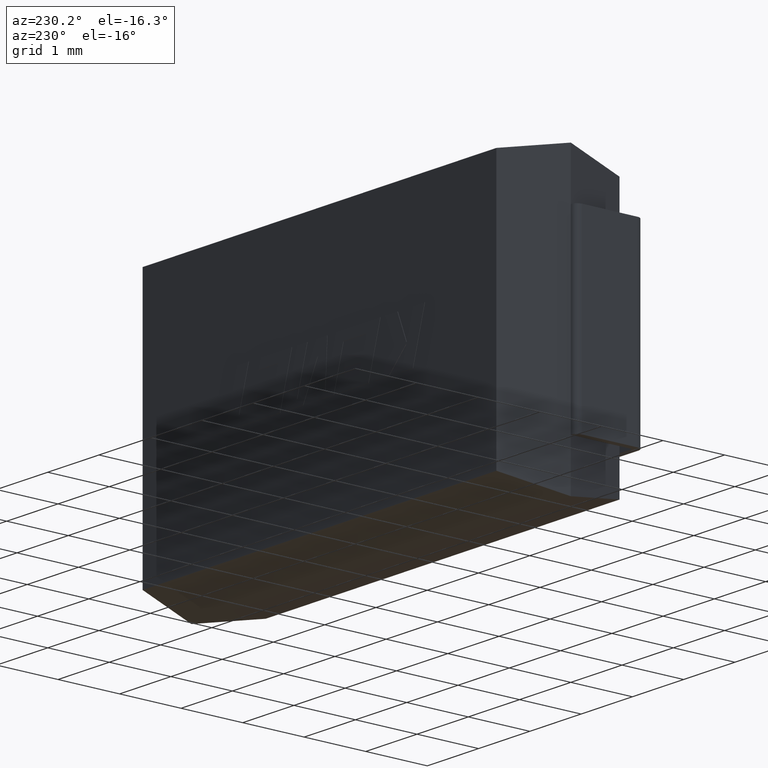
[diagram: clean part render]
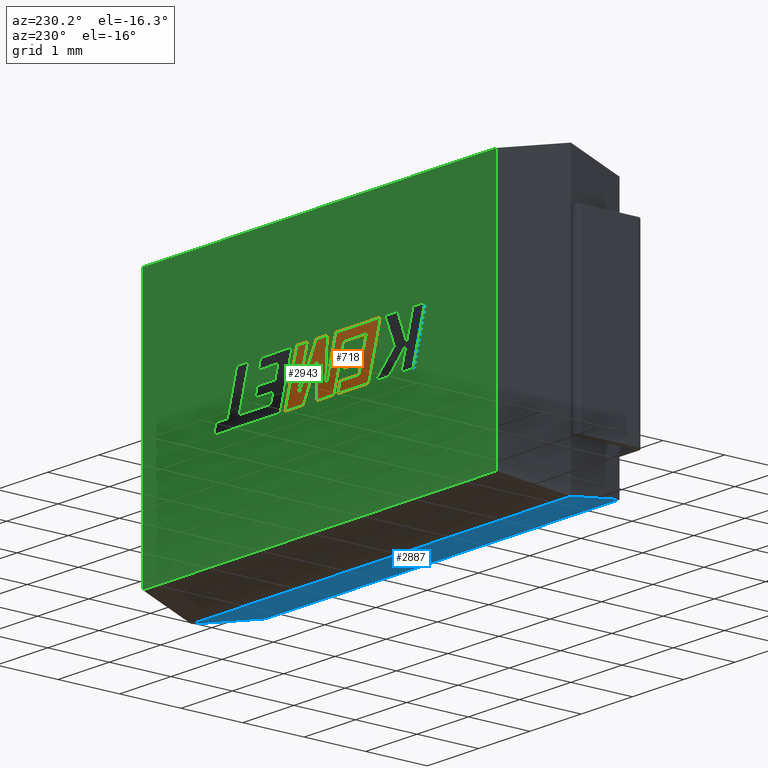
[diagram: same view with three faces highlighted in distinct colors, each labeled with its STEP entity id]
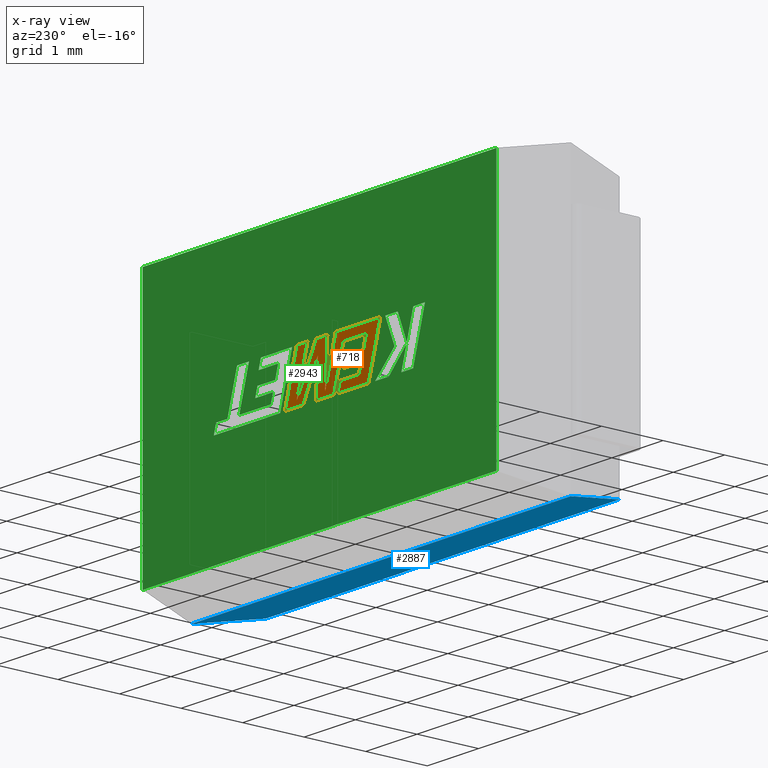
[diagram: x-ray of the same camera — body ghosted, the three highlighted faces saturated]
A machine part, auxiliary view with three faces highlighted in distinct colors.
The next image is the same camera in x-ray (body ghosted, the three faces saturated) — at least one of them is partly hidden behind the body in this view.
Their STEP definitions:

[orange] entity #718 — the highlighted planar face has unit normal (0, -1, -0).
#6 = DIRECTION ( 'NONE',  ( -1.000000000000000000, 0.000000000000000000, 0.000000000000000000 ) ) ;
#16 = VECTOR ( 'NONE', #530, 1000.000000000000000 ) ;
#19 = CARTESIAN_POINT ( 'NONE',  ( 3.417282441482504041, 2.004999999999999893, -2.702191784705270106 ) ) ;
#32 = CARTESIAN_POINT ( 'NONE',  ( 2.882164538290417077, 2.004999999999999893, -2.398684648839587652 ) ) ;
#34 = CARTESIAN_POINT ( 'NONE',  ( 3.758697010579060915, 2.004999999999999893, -1.895731297701219953 ) ) ;
#38 = EDGE_CURVE ( 'NONE', #2933, #2371, #1497, .T. ) ;
#73 = CARTESIAN_POINT ( 'NONE',  ( 3.729711267094204530, 2.004999999999999893, -2.126046051043519736 ) ) ;
#76 = VERTEX_POINT ( 'NONE', #595 ) ;
#77 = ORIENTED_EDGE ( 'NONE', *, *, #1706, .T. ) ;
#101 = ORIENTED_EDGE ( 'NONE', *, *, #1899, .T. ) ;
#125 = EDGE_CURVE ( 'NONE', #1047, #2933, #2625, .T. ) ;
#134 = CARTESIAN_POINT ( 'NONE',  ( 2.741056880455718492, 2.004999999999999893, -2.702191784705270106 ) ) ;
#135 = VERTEX_POINT ( 'NONE', #2122 ) ;
#159 = VECTOR ( 'NONE', #728, 1000.000000000000114 ) ;
#162 = DIRECTION ( 'NONE',  ( -1.000000000000000000, 0.000000000000000000, 0.000000000000000000 ) ) ;
#165 = VECTOR ( 'NONE', #1540, 1000.000000000000114 ) ;
#183 = ORIENTED_EDGE ( 'NONE', *, *, #840, .T. ) ;
#194 = VERTEX_POINT ( 'NONE', #815 ) ;
#203 = DIRECTION ( 'NONE',  ( 1.000000000000000000, 0.000000000000000000, -2.116196963092782927E-15 ) ) ;
#267 = DIRECTION ( 'NONE',  ( 1.000000000000000000, 0.000000000000000000, 0.000000000000000000 ) ) ;
#273 = ORIENTED_EDGE ( 'NONE', *, *, #2906, .T. ) ;
#284 = CARTESIAN_POINT ( 'NONE',  ( 3.932371369323392596, 2.004999999999999893, -1.895731297701219953 ) ) ;
#294 = ORIENTED_EDGE ( 'NONE', *, *, #1900, .T. ) ;
#323 = ORIENTED_EDGE ( 'NONE', *, *, #1918, .T. ) ;
#327 = VERTEX_POINT ( 'NONE', #19 ) ;
#328 = DIRECTION ( 'NONE',  ( -0.2765379750249962187, 0.000000000000000000, 0.9610029908221277006 ) ) ;
#356 = EDGE_CURVE ( 'NONE', #2712, #1876, #449, .T. ) ;
#387 = VERTEX_POINT ( 'NONE', #482 ) ;
#394 = CARTESIAN_POINT ( 'NONE',  ( 3.229577011083042848, 2.004999999999999893, -2.049160894554300949 ) ) ;
#427 = VERTEX_POINT ( 'NONE', #1378 ) ;
#435 = VERTEX_POINT ( 'NONE', #736 ) ;
#449 = LINE ( 'NONE', #1881, #698 ) ;
#467 = VECTOR ( 'NONE', #203, 1000.000000000000000 ) ;
#482 = CARTESIAN_POINT ( 'NONE',  ( 3.336842861889568024, 2.004999999999999893, -2.702191784705270106 ) ) ;
#491 = DIRECTION ( 'NONE',  ( 0.000000000000000000, -1.000000000000000000, -0.000000000000000000 ) ) ;
#492 = LINE ( 'NONE', #2819, #2634 ) ;
#517 = LINE ( 'NONE', #1891, #16 ) ;
#530 = DIRECTION ( 'NONE',  ( 1.000000000000000000, 0.000000000000000000, 0.000000000000000000 ) ) ;
#595 = CARTESIAN_POINT ( 'NONE',  ( 2.925812401867613932, 2.004999999999999893, -2.548686171911270559 ) ) ;
#596 = LINE ( 'NONE', #1322, #2778 ) ;
#607 = DIRECTION ( 'NONE',  ( 0.2759782365590708886, 0.000000000000000000, -0.9611638845408962961 ) ) ;
#621 = LINE ( 'NONE', #2682, #2822 ) ;
#659 = VECTOR ( 'NONE', #1998, 1000.000000000000114 ) ;
#665 = VERTEX_POINT ( 'NONE', #928 ) ;
#668 = VECTOR ( 'NONE', #267, 1000.000000000000000 ) ;
#698 = VECTOR ( 'NONE', #2770, 1000.000000000000227 ) ;
#718 = ADVANCED_FACE ( 'NONE', ( #1860 ), #2781, .F. ) ;
#724 = DIRECTION ( 'NONE',  ( -1.000000000000000000, 0.000000000000000000, 0.000000000000000000 ) ) ;
#728 = DIRECTION ( 'NONE',  ( 0.05375259206908022946, 0.000000000000000000, -0.9985542843760948362 ) ) ;
#736 = CARTESIAN_POINT ( 'NONE',  ( 4.369168781617137398, 2.004999999999999893, -2.702191784705270106 ) ) ;
#785 = AXIS2_PLACEMENT_3D ( 'NONE', #1878, #491, #1414 ) ;
#807 = CARTESIAN_POINT ( 'NONE',  ( 3.932371369323392596, 2.004999999999999893, -1.895731297701219953 ) ) ;
#811 = ORIENTED_EDGE ( 'NONE', *, *, #38, .T. ) ;
#815 = CARTESIAN_POINT ( 'NONE',  ( 4.137305445195226916, 2.004999999999999893, -1.895731297701220397 ) ) ;
#817 = CARTESIAN_POINT ( 'NONE',  ( 4.139541785171635624, 2.004999999999999893, -2.617159370927629070 ) ) ;
#821 = ORIENTED_EDGE ( 'NONE', *, *, #2618, .T. ) ;
#840 = EDGE_CURVE ( 'NONE', #1876, #665, #596, .T. ) ;
#844 = EDGE_CURVE ( 'NONE', #2758, #427, #1344, .T. ) ;
#852 = VERTEX_POINT ( 'NONE', #882 ) ;
#882 = CARTESIAN_POINT ( 'NONE',  ( 2.741056880455718492, 2.004999999999999893, -2.702191784705270106 ) ) ;
#889 = ORIENTED_EDGE ( 'NONE', *, *, #1829, .T. ) ;
#928 = CARTESIAN_POINT ( 'NONE',  ( 2.882164538290417077, 2.004999999999999893, -2.398684648839587652 ) ) ;
#952 = CARTESIAN_POINT ( 'NONE',  ( 3.377795837061557727, 2.004999999999999893, -1.895731297701219731 ) ) ;
#992 = CARTESIAN_POINT ( 'NONE',  ( 2.839629940447088607, 2.004999999999999893, -2.249597769201114872 ) ) ;
#993 = CARTESIAN_POINT ( 'NONE',  ( 3.543701856940162376, 2.004999999999999893, -1.895731297701219953 ) ) ;
#1010 = DIRECTION ( 'NONE',  ( 0.2732148821745548073, 0.000000000000000000, -0.9619530280415691248 ) ) ;
#1047 = VERTEX_POINT ( 'NONE', #993 ) ;
#1054 = LINE ( 'NONE', #1791, #2689 ) ;
#1068 = ORIENTED_EDGE ( 'NONE', *, *, #1662, .T. ) ;
#1201 = CARTESIAN_POINT ( 'NONE',  ( 3.583946168008536937, 2.004999999999999893, -2.613701871623553163 ) ) ;
#1258 = DIRECTION ( 'NONE',  ( -0.4443210308328901514, 0.000000000000000000, 0.8958676361827107026 ) ) ;
#1294 = DIRECTION ( 'NONE',  ( 1.000000000000000000, 0.000000000000000000, 0.000000000000000000 ) ) ;
#1301 = LINE ( 'NONE', #2229, #659 ) ;
#1322 = CARTESIAN_POINT ( 'NONE',  ( 3.228306809212786010, 2.004999999999999893, -2.398684648839587652 ) ) ;
#1323 = VERTEX_POINT ( 'NONE', #2580 ) ;
#1327 = EDGE_CURVE ( 'NONE', #1323, #2655, #1668, .T. ) ;
#1344 = LINE ( 'NONE', #394, #1905 ) ;
#1378 = CARTESIAN_POINT ( 'NONE',  ( 2.782519898721566687, 2.004999999999999893, -2.049160894554300949 ) ) ;
#1391 = VECTOR ( 'NONE', #2598, 1000.000000000000114 ) ;
#1414 = DIRECTION ( 'NONE',  ( 0.000000000000000000, 0.000000000000000000, -1.000000000000000000 ) ) ;
#1431 = CARTESIAN_POINT ( 'NONE',  ( 4.369168781617137398, 2.004999999999999893, -2.702191784705270106 ) ) ;
#1441 = DIRECTION ( 'NONE',  ( -1.000000000000000000, 0.000000000000000000, 0.000000000000000000 ) ) ;
#1445 = EDGE_CURVE ( 'NONE', #1588, #2854, #621, .T. ) ;
#1446 = EDGE_CURVE ( 'NONE', #194, #435, #1301, .T. ) ;
#1452 = LINE ( 'NONE', #284, #467 ) ;
#1453 = VECTOR ( 'NONE', #2463, 1000.000000000000114 ) ;
#1458 = CARTESIAN_POINT ( 'NONE',  ( 3.760725431349892567, 2.004999999999999893, -2.702191784705270106 ) ) ;
#1475 = VECTOR ( 'NONE', #2993, 1000.000000000000000 ) ;
#1480 = CARTESIAN_POINT ( 'NONE',  ( 4.015460696978008670, 2.004999999999999893, -2.702191784705270106 ) ) ;
#1497 = LINE ( 'NONE', #2237, #1453 ) ;
#1506 = ORIENTED_EDGE ( 'NONE', *, *, #1809, .T. ) ;
#1519 = CARTESIAN_POINT ( 'NONE',  ( 3.293244040855623389, 2.004999999999999893, -2.548686171911270559 ) ) ;
#1540 = DIRECTION ( 'NONE',  ( -0.2762517575165896466, 0.000000000000000000, 0.9610853065513982330 ) ) ;
#1588 = VERTEX_POINT ( 'NONE', #952 ) ;
#1591 = CARTESIAN_POINT ( 'NONE',  ( 4.015460696978008670, 2.004999999999999893, -2.702191784705270106 ) ) ;
#1609 = CARTESIAN_POINT ( 'NONE',  ( 3.583946168008536937, 2.004999999999999893, -2.613701871623553163 ) ) ;
#1655 = LINE ( 'NONE', #2581, #668 ) ;
#1662 = EDGE_CURVE ( 'NONE', #2371, #1997, #1054, .T. ) ;
#1668 = LINE ( 'NONE', #73, #159 ) ;
#1683 = CARTESIAN_POINT ( 'NONE',  ( 3.185723168826146257, 2.004999999999999893, -2.249597769201114872 ) ) ;
#1686 = CARTESIAN_POINT ( 'NONE',  ( 3.228306809212786010, 2.004999999999999893, -2.398684648839587652 ) ) ;
#1695 = CARTESIAN_POINT ( 'NONE',  ( 3.543701856940162376, 2.004999999999999893, -1.895731297701219953 ) ) ;
#1706 = EDGE_CURVE ( 'NONE', #427, #2678, #2439, .T. ) ;
#1738 = EDGE_LOOP ( 'NONE', ( #323, #2641, #2413, #273, #2360, #2249, #77, #294, #2855, #183, #101, #821, #2508, #889, #1967, #2648, #2478, #2262, #2317, #811, #1068, #1506, #2896 ) ) ;
#1750 = LINE ( 'NONE', #1519, #1818 ) ;
#1769 = CARTESIAN_POINT ( 'NONE',  ( 3.417282441482504041, 2.004999999999999893, -2.702191784705270106 ) ) ;
#1778 = DIRECTION ( 'NONE',  ( -0.2760118818968559373, 0.000000000000000000, 0.9611542233438690186 ) ) ;
#1791 = CARTESIAN_POINT ( 'NONE',  ( 4.139541785171635624, 2.004999999999999893, -2.617159370927629070 ) ) ;
#1809 = EDGE_CURVE ( 'NONE', #1997, #194, #1452, .T. ) ;
#1818 = VECTOR ( 'NONE', #1010, 1000.000000000000227 ) ;
#1829 = EDGE_CURVE ( 'NONE', #387, #852, #492, .T. ) ;
#1860 = FACE_OUTER_BOUND ( 'NONE', #1738, .T. ) ;
#1870 = VECTOR ( 'NONE', #2504, 1000.000000000000000 ) ;
#1876 = VERTEX_POINT ( 'NONE', #1686 ) ;
#1878 = CARTESIAN_POINT ( 'NONE',  ( 0.000000000000000000, 2.004999999999999005, 0.000000000000000000 ) ) ;
#1881 = CARTESIAN_POINT ( 'NONE',  ( 3.185723168826146257, 2.004999999999999893, -2.249597769201114872 ) ) ;
#1891 = CARTESIAN_POINT ( 'NONE',  ( 2.839629940447088607, 2.004999999999999893, -2.249597769201114872 ) ) ;
#1899 = EDGE_CURVE ( 'NONE', #665, #76, #2123, .T. ) ;
#1900 = EDGE_CURVE ( 'NONE', #2678, #2712, #517, .T. ) ;
#1905 = VECTOR ( 'NONE', #162, 1000.000000000000000 ) ;
#1910 = VECTOR ( 'NONE', #724, 1000.000000000000000 ) ;
#1918 = EDGE_CURVE ( 'NONE', #435, #2192, #2760, .T. ) ;
#1967 = ORIENTED_EDGE ( 'NONE', *, *, #2035, .T. ) ;
#1992 = EDGE_CURVE ( 'NONE', #135, #387, #1750, .T. ) ;
#1997 = VERTEX_POINT ( 'NONE', #807 ) ;
#1998 = DIRECTION ( 'NONE',  ( 0.2763139702539123554, 0.000000000000000000, -0.9610674221107070592 ) ) ;
#2035 = EDGE_CURVE ( 'NONE', #852, #2532, #2658, .T. ) ;
#2050 = EDGE_CURVE ( 'NONE', #327, #2758, #2907, .T. ) ;
#2085 = CARTESIAN_POINT ( 'NONE',  ( 2.508990016831305070, 2.004999999999999893, -1.895731297701219509 ) ) ;
#2114 = LINE ( 'NONE', #2085, #1475 ) ;
#2122 = CARTESIAN_POINT ( 'NONE',  ( 3.293244040855623389, 2.004999999999999893, -2.548686171911270559 ) ) ;
#2123 = LINE ( 'NONE', #32, #2496 ) ;
#2192 = VERTEX_POINT ( 'NONE', #1591 ) ;
#2229 = CARTESIAN_POINT ( 'NONE',  ( 4.137305445195226916, 2.004999999999999893, -1.895731297701220397 ) ) ;
#2237 = CARTESIAN_POINT ( 'NONE',  ( 3.758697010579060915, 2.004999999999999893, -1.895731297701219953 ) ) ;
#2248 = CARTESIAN_POINT ( 'NONE',  ( 3.229577011083042848, 2.004999999999999893, -2.049160894554300949 ) ) ;
#2249 = ORIENTED_EDGE ( 'NONE', *, *, #844, .T. ) ;
#2262 = ORIENTED_EDGE ( 'NONE', *, *, #2588, .T. ) ;
#2285 = CARTESIAN_POINT ( 'NONE',  ( 2.508990016831305070, 2.004999999999999893, -1.895731297701219509 ) ) ;
#2314 = VECTOR ( 'NONE', #1258, 1000.000000000000227 ) ;
#2317 = ORIENTED_EDGE ( 'NONE', *, *, #125, .T. ) ;
#2327 = CARTESIAN_POINT ( 'NONE',  ( 3.760725431349892567, 2.004999999999999893, -2.702191784705270106 ) ) ;
#2336 = LINE ( 'NONE', #2327, #2930 ) ;
#2360 = ORIENTED_EDGE ( 'NONE', *, *, #2050, .T. ) ;
#2371 = VERTEX_POINT ( 'NONE', #817 ) ;
#2413 = ORIENTED_EDGE ( 'NONE', *, *, #1327, .T. ) ;
#2416 = EDGE_CURVE ( 'NONE', #2192, #1323, #2635, .T. ) ;
#2439 = LINE ( 'NONE', #2683, #1870 ) ;
#2463 = DIRECTION ( 'NONE',  ( 0.4668459304955208111, 0.000000000000000000, -0.8843386665637613664 ) ) ;
#2478 = ORIENTED_EDGE ( 'NONE', *, *, #1445, .T. ) ;
#2496 = VECTOR ( 'NONE', #2604, 1000.000000000000114 ) ;
#2498 = VECTOR ( 'NONE', #328, 1000.000000000000114 ) ;
#2504 = DIRECTION ( 'NONE',  ( 0.2740217765954056639, 0.000000000000000000, -0.9617234872620599173 ) ) ;
#2508 = ORIENTED_EDGE ( 'NONE', *, *, #1992, .T. ) ;
#2532 = VERTEX_POINT ( 'NONE', #2285 ) ;
#2573 = EDGE_CURVE ( 'NONE', #2532, #1588, #2114, .T. ) ;
#2580 = CARTESIAN_POINT ( 'NONE',  ( 3.729711267094204530, 2.004999999999999893, -2.126046051043519736 ) ) ;
#2581 = CARTESIAN_POINT ( 'NONE',  ( 2.925812401867613932, 2.004999999999999893, -2.548686171911270559 ) ) ;
#2588 = EDGE_CURVE ( 'NONE', #2854, #1047, #2811, .T. ) ;
#2598 = DIRECTION ( 'NONE',  ( -0.05596501978068773447, 0.000000000000000000, 0.9984327301130242471 ) ) ;
#2604 = DIRECTION ( 'NONE',  ( 0.2793947940878285796, 0.000000000000000000, -0.9601763114327596105 ) ) ;
#2618 = EDGE_CURVE ( 'NONE', #76, #135, #1655, .T. ) ;
#2625 = LINE ( 'NONE', #1695, #2675 ) ;
#2634 = VECTOR ( 'NONE', #1441, 1000.000000000000000 ) ;
#2635 = LINE ( 'NONE', #1480, #2314 ) ;
#2641 = ORIENTED_EDGE ( 'NONE', *, *, #2416, .T. ) ;
#2648 = ORIENTED_EDGE ( 'NONE', *, *, #2573, .T. ) ;
#2655 = VERTEX_POINT ( 'NONE', #1458 ) ;
#2658 = LINE ( 'NONE', #134, #2498 ) ;
#2675 = VECTOR ( 'NONE', #1294, 1000.000000000000000 ) ;
#2678 = VERTEX_POINT ( 'NONE', #992 ) ;
#2682 = CARTESIAN_POINT ( 'NONE',  ( 3.377795837061557727, 2.004999999999999893, -1.895731297701219731 ) ) ;
#2683 = CARTESIAN_POINT ( 'NONE',  ( 2.782519898721566687, 2.004999999999999893, -2.049160894554300949 ) ) ;
#2689 = VECTOR ( 'NONE', #1778, 1000.000000000000114 ) ;
#2712 = VERTEX_POINT ( 'NONE', #1683 ) ;
#2758 = VERTEX_POINT ( 'NONE', #2248 ) ;
#2760 = LINE ( 'NONE', #1431, #1910 ) ;
#2770 = DIRECTION ( 'NONE',  ( 0.2746459304916899491, 0.000000000000000000, -0.9615454294334478957 ) ) ;
#2778 = VECTOR ( 'NONE', #2948, 1000.000000000000000 ) ;
#2781 = PLANE ( 'NONE',  #785 ) ;
#2811 = LINE ( 'NONE', #1201, #1391 ) ;
#2819 = CARTESIAN_POINT ( 'NONE',  ( 3.336842861889568024, 2.004999999999999893, -2.702191784705270106 ) ) ;
#2822 = VECTOR ( 'NONE', #607, 1000.000000000000114 ) ;
#2854 = VERTEX_POINT ( 'NONE', #1609 ) ;
#2855 = ORIENTED_EDGE ( 'NONE', *, *, #356, .T. ) ;
#2896 = ORIENTED_EDGE ( 'NONE', *, *, #1446, .T. ) ;
#2906 = EDGE_CURVE ( 'NONE', #2655, #327, #2336, .T. ) ;
#2907 = LINE ( 'NONE', #1769, #165 ) ;
#2930 = VECTOR ( 'NONE', #6, 1000.000000000000000 ) ;
#2933 = VERTEX_POINT ( 'NONE', #34 ) ;
#2948 = DIRECTION ( 'NONE',  ( -1.000000000000000000, 0.000000000000000000, 0.000000000000000000 ) ) ;
#2993 = DIRECTION ( 'NONE',  ( 1.000000000000000000, 0.000000000000000000, 2.989837354970568653E-16 ) ) ;

[blue] entity #2887 — the highlighted planar face has unit normal (0, -0.1961, -0.9806).
#173 = ORIENTED_EDGE ( 'NONE', *, *, #458, .T. ) ;
#205 = FACE_OUTER_BOUND ( 'NONE', #2438, .T. ) ;
#316 = CARTESIAN_POINT ( 'NONE',  ( 7.399999999999999467, 0.9999999999999991118, -4.599999999999999645 ) ) ;
#331 = LINE ( 'NONE', #518, #2434 ) ;
#344 = LINE ( 'NONE', #316, #848 ) ;
#458 = EDGE_CURVE ( 'NONE', #2905, #834, #331, .T. ) ;
#510 = AXIS2_PLACEMENT_3D ( 'NONE', #2125, #2535, #1865 ) ;
#518 = CARTESIAN_POINT ( 'NONE',  ( 7.399999999999999467, -1.084202172485504434E-16, -4.400000000000000355 ) ) ;
#522 = ORIENTED_EDGE ( 'NONE', *, *, #561, .T. ) ;
#561 = EDGE_CURVE ( 'NONE', #2400, #2905, #1521, .T. ) ;
#732 = VERTEX_POINT ( 'NONE', #1192 ) ;
#740 = CARTESIAN_POINT ( 'NONE',  ( 0.2267573696145126494, 0.09297052154195004081, -4.418594104308390946 ) ) ;
#784 = CARTESIAN_POINT ( 'NONE',  ( 7.399999999999999467, 0.9999999999999991118, -4.599999999999999645 ) ) ;
#834 = VERTEX_POINT ( 'NONE', #2889 ) ;
#836 = VECTOR ( 'NONE', #857, 1000.000000000000000 ) ;
#848 = VECTOR ( 'NONE', #1929, 1000.000000000000000 ) ;
#857 = DIRECTION ( 'NONE',  ( -0.2380952380952383041, -0.9523809523809524391, 0.1904761904761902991 ) ) ;
#936 = PLANE ( 'NONE',  #510 ) ;
#1192 = CARTESIAN_POINT ( 'NONE',  ( 0.000000000000000000, 0.9999999999999991118, -4.599999999999999645 ) ) ;
#1473 = DIRECTION ( 'NONE',  ( -1.000000000000000000, 0.000000000000000000, 0.000000000000000000 ) ) ;
#1521 = LINE ( 'NONE', #2893, #836 ) ;
#1641 = CARTESIAN_POINT ( 'NONE',  ( 7.150000000000000355, 5.421010862427522170E-17, -4.400000000000000355 ) ) ;
#1669 = DIRECTION ( 'NONE',  ( 0.2380952380952381098, -0.9523809523809524391, 0.1904761904761902991 ) ) ;
#1865 = DIRECTION ( 'NONE',  ( 0.000000000000000000, 0.9805806756909202226, -0.1961161351381838502 ) ) ;
#1895 = LINE ( 'NONE', #740, #2401 ) ;
#1929 = DIRECTION ( 'NONE',  ( -1.000000000000000000, 0.000000000000000000, 0.000000000000000000 ) ) ;
#1970 = EDGE_CURVE ( 'NONE', #2400, #732, #344, .T. ) ;
#2125 = CARTESIAN_POINT ( 'NONE',  ( 7.399999999999999467, -0.8461538461538455902, -4.230769230769231726 ) ) ;
#2400 = VERTEX_POINT ( 'NONE', #784 ) ;
#2401 = VECTOR ( 'NONE', #1669, 1000.000000000000000 ) ;
#2415 = ORIENTED_EDGE ( 'NONE', *, *, #2619, .F. ) ;
#2434 = VECTOR ( 'NONE', #1473, 1000.000000000000000 ) ;
#2438 = EDGE_LOOP ( 'NONE', ( #2949, #522, #173, #2415 ) ) ;
#2535 = DIRECTION ( 'NONE',  ( 0.000000000000000000, -0.1961161351381838502, -0.9805806756909202226 ) ) ;
#2619 = EDGE_CURVE ( 'NONE', #732, #834, #1895, .T. ) ;
#2887 = ADVANCED_FACE ( 'NONE', ( #205 ), #936, .T. ) ;
#2889 = CARTESIAN_POINT ( 'NONE',  ( 0.2500000000000006661, -2.371692252312040949E-16, -4.400000000000000355 ) ) ;
#2893 = CARTESIAN_POINT ( 'NONE',  ( 6.753741496598638427, -1.585034013605443493, -4.082993197278912412 ) ) ;
#2905 = VERTEX_POINT ( 'NONE', #1641 ) ;
#2949 = ORIENTED_EDGE ( 'NONE', *, *, #1970, .F. ) ;

[green] entity #2943 — the highlighted planar face has unit normal (0, -1, 0).
#8 = ORIENTED_EDGE ( 'NONE', *, *, #1199, .F. ) ;
#15 = CARTESIAN_POINT ( 'NONE',  ( 4.564799487016718338, 2.000000000000000000, -2.249597769199492170 ) ) ;
#23 = VECTOR ( 'NONE', #2860, 1000.000000000000000 ) ;
#24 = EDGE_CURVE ( 'NONE', #1747, #2895, #2187, .T. ) ;
#45 = PLANE ( 'NONE',  #1040 ) ;
#47 = CARTESIAN_POINT ( 'NONE',  ( 4.887210071214730611, 2.000000000000000000, -2.049190320078301930 ) ) ;
#53 = VECTOR ( 'NONE', #2173, 1000.000000000000227 ) ;
#64 = VECTOR ( 'NONE', #225, 1000.000000000000000 ) ;
#71 = FACE_BOUND ( 'NONE', #502, .T. ) ;
#74 = CARTESIAN_POINT ( 'NONE',  ( 2.839629940447088607, 2.000000000000000000, -2.249597769201114872 ) ) ;
#85 = EDGE_CURVE ( 'NONE', #1879, #2064, #1307, .T. ) ;
#94 = DIRECTION ( 'NONE',  ( 0.9999891854650020395, 0.000000000000000000, 0.004650693823677748417 ) ) ;
#99 = VECTOR ( 'NONE', #2426, 1000.000000000000114 ) ;
#103 = ORIENTED_EDGE ( 'NONE', *, *, #2589, .F. ) ;
#108 = VECTOR ( 'NONE', #2402, 1000.000000000000000 ) ;
#109 = VECTOR ( 'NONE', #2027, 1000.000000000000114 ) ;
#111 = LINE ( 'NONE', #851, #2305 ) ;
#121 = ORIENTED_EDGE ( 'NONE', *, *, #2319, .F. ) ;
#122 = VERTEX_POINT ( 'NONE', #2640 ) ;
#127 = LINE ( 'NONE', #556, #751 ) ;
#128 = ORIENTED_EDGE ( 'NONE', *, *, #1657, .F. ) ;
#138 = CARTESIAN_POINT ( 'NONE',  ( 4.466326964883680084, 2.000000000000000000, -2.702191784705270550 ) ) ;
#145 = ORIENTED_EDGE ( 'NONE', *, *, #349, .F. ) ;
#151 = ORIENTED_EDGE ( 'NONE', *, *, #1934, .F. ) ;
#156 = DIRECTION ( 'NONE',  ( 0.3725077383644281315, -0.000000000000000000, 0.9280290862136911789 ) ) ;
#157 = DIRECTION ( 'NONE',  ( -0.2764273280489774609, 0.000000000000000000, 0.9610348236706632852 ) ) ;
#169 = VERTEX_POINT ( 'NONE', #1256 ) ;
#174 = DIRECTION ( 'NONE',  ( 0.2746459304916899491, 0.000000000000000000, -0.9615454294334478957 ) ) ;
#175 = LINE ( 'NONE', #1287, #2741 ) ;
#189 = CARTESIAN_POINT ( 'NONE',  ( 1.643042118063711143, 2.000000000000000000, -1.895731297701219953 ) ) ;
#192 = LINE ( 'NONE', #1123, #299 ) ;
#204 = VECTOR ( 'NONE', #1607, 1000.000000000000114 ) ;
#210 = DIRECTION ( 'NONE',  ( -0.4443210308328901514, 0.000000000000000000, 0.8958676361827107026 ) ) ;
#213 = EDGE_CURVE ( 'NONE', #1317, #1313, #2724, .T. ) ;
#214 = VECTOR ( 'NONE', #210, 1000.000000000000227 ) ;
#217 = CARTESIAN_POINT ( 'NONE',  ( 2.882164538290417521, 2.000000000000000000, -2.398684648839586764 ) ) ;
#222 = VECTOR ( 'NONE', #2853, 1000.000000000000000 ) ;
#225 = DIRECTION ( 'NONE',  ( 1.000000000000000000, 0.000000000000000000, 0.000000000000000000 ) ) ;
#233 = ORIENTED_EDGE ( 'NONE', *, *, #1680, .F. ) ;
#243 = ORIENTED_EDGE ( 'NONE', *, *, #2107, .F. ) ;
#244 = DIRECTION ( 'NONE',  ( 0.9999999968487351953, 0.000000000000000000, 7.938847109419766123E-05 ) ) ;
#254 = LINE ( 'NONE', #1189, #980 ) ;
#255 = VECTOR ( 'NONE', #1042, 999.9999999999998863 ) ;
#257 = VERTEX_POINT ( 'NONE', #401 ) ;
#280 = CARTESIAN_POINT ( 'NONE',  ( 2.005851497339631528, 2.000000000000000000, -2.358285853762934536 ) ) ;
#297 = VERTEX_POINT ( 'NONE', #1152 ) ;
#299 = VECTOR ( 'NONE', #2960, 1000.000000000000000 ) ;
#324 = ORIENTED_EDGE ( 'NONE', *, *, #2866, .F. ) ;
#342 = VERTEX_POINT ( 'NONE', #2565 ) ;
#349 = EDGE_CURVE ( 'NONE', #2303, #1334, #1892, .T. ) ;
#354 = CARTESIAN_POINT ( 'NONE',  ( 4.607334084859068923, 2.000000000000000000, -2.398657675439463954 ) ) ;
#358 = EDGE_CURVE ( 'NONE', #2914, #2936, #2096, .T. ) ;
#375 = EDGE_CURVE ( 'NONE', #1342, #2412, #2592, .T. ) ;
#376 = CARTESIAN_POINT ( 'NONE',  ( 4.843665196979642040, 2.000000000000000000, -1.895731297701220619 ) ) ;
#383 = CARTESIAN_POINT ( 'NONE',  ( 4.507586455951489768, 2.000000000000000000, -2.049190320078301930 ) ) ;
#385 = VERTEX_POINT ( 'NONE', #699 ) ;
#395 = ORIENTED_EDGE ( 'NONE', *, *, #358, .F. ) ;
#401 = CARTESIAN_POINT ( 'NONE',  ( 1.872362597965852693, 2.000000000000000000, -1.895731297701220397 ) ) ;
#414 = CARTESIAN_POINT ( 'NONE',  ( 3.229577011083042848, 2.000000000000000000, -2.049160894554300949 ) ) ;
#417 = EDGE_CURVE ( 'NONE', #1244, #2303, #1620, .T. ) ;
#445 = VERTEX_POINT ( 'NONE', #2310 ) ;
#451 = EDGE_CURVE ( 'NONE', #2872, #1244, #2606, .T. ) ;
#461 = ORIENTED_EDGE ( 'NONE', *, *, #2789, .F. ) ;
#466 = VERTEX_POINT ( 'NONE', #2404 ) ;
#470 = VERTEX_POINT ( 'NONE', #2660 ) ;
#471 = VECTOR ( 'NONE', #486, 1000.000000000000114 ) ;
#474 = CARTESIAN_POINT ( 'NONE',  ( 2.882164538290417077, 2.000000000000000000, -2.398684648839587652 ) ) ;
#483 = CARTESIAN_POINT ( 'NONE',  ( 4.910838768598099868, 2.000000000000000000, -2.249597769199492170 ) ) ;
#486 = DIRECTION ( 'NONE',  ( -0.2760118818968559373, 0.000000000000000000, 0.9611542233438690186 ) ) ;
#502 = EDGE_LOOP ( 'NONE', ( #1216, #8, #2083, #1350, #2730, #625, #585, #1283, #2289, #128, #634, #1481, #1861, #694, #1564, #1719, #628 ) ) ;
#508 = CARTESIAN_POINT ( 'NONE',  ( 2.925812401867613932, 2.000000000000000000, -2.548686171911270559 ) ) ;
#515 = VERTEX_POINT ( 'NONE', #650 ) ;
#528 = ORIENTED_EDGE ( 'NONE', *, *, #417, .F. ) ;
#536 = EDGE_CURVE ( 'NONE', #2412, #858, #2259, .T. ) ;
#544 = CARTESIAN_POINT ( 'NONE',  ( 2.237508854434027583, 2.000000000000000000, -2.333617454457372453 ) ) ;
#546 = VECTOR ( 'NONE', #2725, 1000.000000000000114 ) ;
#556 = CARTESIAN_POINT ( 'NONE',  ( 4.953422408983801262, 2.000000000000000000, -2.398657675439464398 ) ) ;
#560 = VERTEX_POINT ( 'NONE', #1131 ) ;
#565 = CARTESIAN_POINT ( 'NONE',  ( 4.234360638473013694, 2.000000000000000000, -1.895731297701220175 ) ) ;
#575 = CARTESIAN_POINT ( 'NONE',  ( 2.104431913717434988, 2.000000000000000000, -2.702191784705270106 ) ) ;
#576 = CARTESIAN_POINT ( 'NONE',  ( 4.843665196979641152, 2.000000000000000000, -1.895731297701220397 ) ) ;
#577 = VERTEX_POINT ( 'NONE', #1311 ) ;
#580 = EDGE_CURVE ( 'NONE', #2290, #257, #632, .T. ) ;
#581 = CARTESIAN_POINT ( 'NONE',  ( 4.137305445195226916, 2.000000000000000000, -1.895731297701220619 ) ) ;
#585 = ORIENTED_EDGE ( 'NONE', *, *, #1832, .F. ) ;
#587 = VERTEX_POINT ( 'NONE', #2497 ) ;
#606 = EDGE_LOOP ( 'NONE', ( #1122, #121, #1841, #103, #243, #145, #528, #2842, #809, #902, #828, #1811, #395, #2156, #812, #1177, #324, #684, #151, #2005, #1373, #1395, #1169 ) ) ;
#624 = LINE ( 'NONE', #2021, #1723 ) ;
#625 = ORIENTED_EDGE ( 'NONE', *, *, #2054, .F. ) ;
#628 = ORIENTED_EDGE ( 'NONE', *, *, #24, .F. ) ;
#632 = LINE ( 'NONE', #825, #700 ) ;
#634 = ORIENTED_EDGE ( 'NONE', *, *, #1975, .F. ) ;
#643 = EDGE_CURVE ( 'NONE', #2313, #1647, #1375, .T. ) ;
#650 = CARTESIAN_POINT ( 'NONE',  ( 2.005851497339631528, 2.000000000000000000, -2.358285853762934536 ) ) ;
#655 = CARTESIAN_POINT ( 'NONE',  ( 3.185723168826146257, 2.000000000000000000, -2.249597769201114872 ) ) ;
#657 = CARTESIAN_POINT ( 'NONE',  ( 3.293244040855623389, 2.000000000000000000, -2.548686171911270559 ) ) ;
#667 = EDGE_CURVE ( 'NONE', #1926, #470, #696, .T. ) ;
#671 = VECTOR ( 'NONE', #1106, 1000.000000000000000 ) ;
#673 = EDGE_CURVE ( 'NONE', #1265, #1650, #2061, .T. ) ;
#681 = ORIENTED_EDGE ( 'NONE', *, *, #536, .F. ) ;
#684 = ORIENTED_EDGE ( 'NONE', *, *, #1844, .F. ) ;
#694 = ORIENTED_EDGE ( 'NONE', *, *, #1732, .F. ) ;
#696 = LINE ( 'NONE', #2563, #2387 ) ;
#699 = CARTESIAN_POINT ( 'NONE',  ( 2.782519898721566243, 2.000000000000000000, -2.049160894554300949 ) ) ;
#700 = VECTOR ( 'NONE', #2275, 1000.000000000000000 ) ;
#704 = EDGE_CURVE ( 'NONE', #560, #2512, #1163, .T. ) ;
#707 = VECTOR ( 'NONE', #896, 999.9999999999998863 ) ;
#710 = CARTESIAN_POINT ( 'NONE',  ( 4.564799487016718338, 2.000000000000000000, -2.249597769199492170 ) ) ;
#711 = VECTOR ( 'NONE', #157, 1000.000000000000114 ) ;
#715 = CARTESIAN_POINT ( 'NONE',  ( 2.925812401867613932, 2.000000000000000000, -2.548686171911270559 ) ) ;
#717 = CARTESIAN_POINT ( 'NONE',  ( 5.265720420744336217, 2.000000000000000000, -2.546479257459596024 ) ) ;
#727 = CARTESIAN_POINT ( 'NONE',  ( 2.348590215755867572, 2.000000000000000000, -2.702191784705270106 ) ) ;
#729 = DIRECTION ( 'NONE',  ( 1.000000000000000000, -0.000000000000000000, 8.836943128348284424E-16 ) ) ;
#747 = EDGE_CURVE ( 'NONE', #2512, #818, #1915, .T. ) ;
#751 = VECTOR ( 'NONE', #2654, 1000.000000000000000 ) ;
#794 = FACE_OUTER_BOUND ( 'NONE', #2406, .T. ) ;
#800 = VECTOR ( 'NONE', #875, 1000.000000000000227 ) ;
#802 = ORIENTED_EDGE ( 'NONE', *, *, #375, .F. ) ;
#803 = EDGE_CURVE ( 'NONE', #122, #1300, #2818, .T. ) ;
#809 = ORIENTED_EDGE ( 'NONE', *, *, #2835, .F. ) ;
#810 = DIRECTION ( 'NONE',  ( 0.000000000000000000, -1.000000000000000000, 0.000000000000000000 ) ) ;
#812 = ORIENTED_EDGE ( 'NONE', *, *, #1487, .F. ) ;
#818 = VERTEX_POINT ( 'NONE', #1553 ) ;
#825 = CARTESIAN_POINT ( 'NONE',  ( 1.872362597965852471, 2.000000000000000000, -1.895731297701219953 ) ) ;
#828 = ORIENTED_EDGE ( 'NONE', *, *, #85, .F. ) ;
#831 = DIRECTION ( 'NONE',  ( 1.000000000000000000, 0.000000000000000000, -3.558818516450377162E-16 ) ) ;
#837 = LINE ( 'NONE', #1028, #1427 ) ;
#847 = LINE ( 'NONE', #189, #2205 ) ;
#851 = CARTESIAN_POINT ( 'NONE',  ( 4.234360638473013694, 2.000000000000000000, -1.895731297701220175 ) ) ;
#858 = VERTEX_POINT ( 'NONE', #2207 ) ;
#861 = LINE ( 'NONE', #2231, #2505 ) ;
#866 = CARTESIAN_POINT ( 'NONE',  ( 5.716197898665055455, 2.000000000000000000, -2.546461728368874411 ) ) ;
#875 = DIRECTION ( 'NONE',  ( 0.2732148821745548073, 0.000000000000000000, -0.9619530280415691248 ) ) ;
#887 = VECTOR ( 'NONE', #1207, 1000.000000000000000 ) ;
#896 = DIRECTION ( 'NONE',  ( 0.7145695586382346809, -0.000000000000000000, -0.6995643972269877109 ) ) ;
#900 = VECTOR ( 'NONE', #2304, 1000.000000000000114 ) ;
#902 = ORIENTED_EDGE ( 'NONE', *, *, #1500, .F. ) ;
#934 = DIRECTION ( 'NONE',  ( -1.000000000000000000, 0.000000000000000000, 0.000000000000000000 ) ) ;
#941 = VECTOR ( 'NONE', #2520, 1000.000000000000000 ) ;
#957 = CARTESIAN_POINT ( 'NONE',  ( 1.643042118063711143, 2.000000000000000000, -1.895731297701219953 ) ) ;
#961 = CARTESIAN_POINT ( 'NONE',  ( 7.149999999999999467, 2.000000000000000000, -4.599999999999999645 ) ) ;
#962 = CARTESIAN_POINT ( 'NONE',  ( 3.293244040855623389, 2.000000000000000000, -2.548686171911270559 ) ) ;
#964 = CARTESIAN_POINT ( 'NONE',  ( 3.185723168826146257, 2.000000000000000000, -2.249597769201113984 ) ) ;
#967 = LINE ( 'NONE', #280, #1705 ) ;
#969 = VERTEX_POINT ( 'NONE', #2777 ) ;
#980 = VECTOR ( 'NONE', #1887, 1000.000000000000114 ) ;
#984 = CARTESIAN_POINT ( 'NONE',  ( 5.716197898665055455, 2.000000000000000000, -2.546461728368874411 ) ) ;
#985 = CARTESIAN_POINT ( 'NONE',  ( 4.887210071214730611, 2.000000000000000000, -2.049190320078301930 ) ) ;
#998 = CARTESIAN_POINT ( 'NONE',  ( 4.139541785171634736, 2.000000000000000000, -2.617159370927629070 ) ) ;
#999 = EDGE_CURVE ( 'NONE', #1110, #2196, #254, .T. ) ;
#1021 = LINE ( 'NONE', #576, #2642 ) ;
#1028 = CARTESIAN_POINT ( 'NONE',  ( 3.229577011083042848, 2.000000000000000000, -2.049160894554300949 ) ) ;
#1029 = VECTOR ( 'NONE', #174, 1000.000000000000227 ) ;
#1040 = AXIS2_PLACEMENT_3D ( 'NONE', #1720, #810, #2374 ) ;
#1042 = DIRECTION ( 'NONE',  ( 0.9999960426590096541, 0.000000000000000000, 0.002813301676023033382 ) ) ;
#1069 = LINE ( 'NONE', #1740, #2010 ) ;
#1096 = VERTEX_POINT ( 'NONE', #1937 ) ;
#1102 = EDGE_CURVE ( 'NONE', #1148, #515, #967, .T. ) ;
#1106 = DIRECTION ( 'NONE',  ( 1.000000000000000000, 0.000000000000000000, -3.021165783968233551E-15 ) ) ;
#1110 = VERTEX_POINT ( 'NONE', #2357 ) ;
#1118 = CARTESIAN_POINT ( 'NONE',  ( 5.308353103673311146, 2.000000000000000000, -1.895731297701220397 ) ) ;
#1122 = ORIENTED_EDGE ( 'NONE', *, *, #667, .F. ) ;
#1123 = CARTESIAN_POINT ( 'NONE',  ( 4.607334084859068923, 2.000000000000000000, -2.398657675439464398 ) ) ;
#1124 = EDGE_CURVE ( 'NONE', #1601, #1151, #111, .T. ) ;
#1131 = CARTESIAN_POINT ( 'NONE',  ( 5.495396459732828198, 2.000000000000000000, -2.546479257457582079 ) ) ;
#1132 = ORIENTED_EDGE ( 'NONE', *, *, #1162, .F. ) ;
#1136 = CARTESIAN_POINT ( 'NONE',  ( 3.336842861889568024, 2.000000000000000000, -2.702191784705270106 ) ) ;
#1137 = CARTESIAN_POINT ( 'NONE',  ( 3.377795837061557727, 2.000000000000000000, -1.895731297701219509 ) ) ;
#1142 = EDGE_CURVE ( 'NONE', #169, #1747, #2460, .T. ) ;
#1148 = VERTEX_POINT ( 'NONE', #2037 ) ;
#1150 = CARTESIAN_POINT ( 'NONE',  ( 2.237508854434027583, 2.000000000000000000, -2.333617454457372897 ) ) ;
#1151 = VERTEX_POINT ( 'NONE', #376 ) ;
#1152 = CARTESIAN_POINT ( 'NONE',  ( 4.507586455951489768, 2.000000000000000000, -2.049190320078301930 ) ) ;
#1162 = EDGE_CURVE ( 'NONE', #515, #342, #2703, .T. ) ;
#1163 = LINE ( 'NONE', #1618, #2488 ) ;
#1168 = DIRECTION ( 'NONE',  ( 0.2793947940878285796, 0.000000000000000000, -0.9601763114327596105 ) ) ;
#1169 = ORIENTED_EDGE ( 'NONE', *, *, #1230, .F. ) ;
#1177 = ORIENTED_EDGE ( 'NONE', *, *, #1501, .F. ) ;
#1189 = CARTESIAN_POINT ( 'NONE',  ( 3.417282441482504041, 2.000000000000000000, -2.702191784705270106 ) ) ;
#1194 = LINE ( 'NONE', #985, #941 ) ;
#1199 = EDGE_CURVE ( 'NONE', #1773, #169, #192, .T. ) ;
#1207 = DIRECTION ( 'NONE',  ( -0.000000000000000000, -0.000000000000000000, 1.000000000000000000 ) ) ;
#1210 = EDGE_CURVE ( 'NONE', #1650, #466, #1410, .T. ) ;
#1216 = ORIENTED_EDGE ( 'NONE', *, *, #1142, .F. ) ;
#1230 = EDGE_CURVE ( 'NONE', #470, #122, #2315, .T. ) ;
#1239 = VECTOR ( 'NONE', #1168, 1000.000000000000114 ) ;
#1244 = VERTEX_POINT ( 'NONE', #1642 ) ;
#1251 = DIRECTION ( 'NONE',  ( 0.2759782365590708886, 0.000000000000000000, -0.9611638845408962961 ) ) ;
#1256 = CARTESIAN_POINT ( 'NONE',  ( 4.650981948435314983, 2.000000000000000000, -2.548659198511568746 ) ) ;
#1265 = VERTEX_POINT ( 'NONE', #2556 ) ;
#1273 = DIRECTION ( 'NONE',  ( 1.000000000000000000, 0.000000000000000000, 0.000000000000000000 ) ) ;
#1281 = DIRECTION ( 'NONE',  ( -1.000000000000000000, 0.000000000000000000, 0.000000000000000000 ) ) ;
#1283 = ORIENTED_EDGE ( 'NONE', *, *, #2379, .F. ) ;
#1287 = CARTESIAN_POINT ( 'NONE',  ( 3.932371369323392596, 2.000000000000000000, -1.895731297701219953 ) ) ;
#1300 = VERTEX_POINT ( 'NONE', #2148 ) ;
#1307 = LINE ( 'NONE', #2874, #1806 ) ;
#1311 = CARTESIAN_POINT ( 'NONE',  ( 3.228306809212786010, 2.000000000000000000, -2.398684648839587652 ) ) ;
#1313 = VERTEX_POINT ( 'NONE', #2390 ) ;
#1317 = VERTEX_POINT ( 'NONE', #1682 ) ;
#1334 = VERTEX_POINT ( 'NONE', #2631 ) ;
#1342 = VERTEX_POINT ( 'NONE', #1935 ) ;
#1343 = VECTOR ( 'NONE', #2233, 1000.000000000000000 ) ;
#1350 = ORIENTED_EDGE ( 'NONE', *, *, #2331, .F. ) ;
#1362 = LINE ( 'NONE', #2160, #1671 ) ;
#1368 = CARTESIAN_POINT ( 'NONE',  ( 0.2500000000000001665, 2.000000000000000444, -4.599999999999999645 ) ) ;
#1373 = ORIENTED_EDGE ( 'NONE', *, *, #2397, .F. ) ;
#1375 = LINE ( 'NONE', #15, #2911 ) ;
#1381 = VECTOR ( 'NONE', #934, 1000.000000000000000 ) ;
#1387 = EDGE_CURVE ( 'NONE', #2832, #1096, #2650, .T. ) ;
#1392 = ORIENTED_EDGE ( 'NONE', *, *, #1102, .F. ) ;
#1395 = ORIENTED_EDGE ( 'NONE', *, *, #803, .F. ) ;
#1399 = CARTESIAN_POINT ( 'NONE',  ( 2.613988843316547239, 2.000000000000000000, -2.702191784705270106 ) ) ;
#1409 = LINE ( 'NONE', #474, #1239 ) ;
#1410 = LINE ( 'NONE', #1399, #707 ) ;
#1416 = VECTOR ( 'NONE', #94, 1000.000000000000227 ) ;
#1425 = CARTESIAN_POINT ( 'NONE',  ( 2.419015307350435240, 2.000000000000000000, -1.895731297701219953 ) ) ;
#1427 = VECTOR ( 'NONE', #1485, 1000.000000000000000 ) ;
#1432 = EDGE_CURVE ( 'NONE', #1342, #969, #1069, .T. ) ;
#1437 = LINE ( 'NONE', #1853, #471 ) ;
#1455 = VECTOR ( 'NONE', #2361, 999.9999999999998863 ) ;
#1481 = ORIENTED_EDGE ( 'NONE', *, *, #747, .F. ) ;
#1485 = DIRECTION ( 'NONE',  ( -1.000000000000000000, 0.000000000000000000, 0.000000000000000000 ) ) ;
#1487 = EDGE_CURVE ( 'NONE', #577, #2164, #1640, .T. ) ;
#1500 = EDGE_CURVE ( 'NONE', #2064, #1711, #2747, .T. ) ;
#1501 = EDGE_CURVE ( 'NONE', #2564, #577, #2988, .T. ) ;
#1512 = LINE ( 'NONE', #2884, #2826 ) ;
#1541 = DIRECTION ( 'NONE',  ( -1.000000000000000000, 0.000000000000000000, 0.000000000000000000 ) ) ;
#1553 = CARTESIAN_POINT ( 'NONE',  ( 5.760952024080364886, 2.000000000000000000, -2.702191784705270550 ) ) ;
#1562 = LINE ( 'NONE', #1118, #1626 ) ;
#1564 = ORIENTED_EDGE ( 'NONE', *, *, #213, .F. ) ;
#1568 = VERTEX_POINT ( 'NONE', #2175 ) ;
#1597 = DIRECTION ( 'NONE',  ( 0.2755265765475035655, -0.000000000000000000, -0.9612934544747574472 ) ) ;
#1601 = VERTEX_POINT ( 'NONE', #565 ) ;
#1607 = DIRECTION ( 'NONE',  ( -0.05596501978068773447, 0.000000000000000000, 0.9984327301130242471 ) ) ;
#1615 = CARTESIAN_POINT ( 'NONE',  ( 5.265720420744335328, 2.000000000000000000, -2.546479257459596024 ) ) ;
#1618 = CARTESIAN_POINT ( 'NONE',  ( 5.495396459732828198, 2.000000000000000000, -2.546479257457581635 ) ) ;
#1620 = LINE ( 'NONE', #2108, #204 ) ;
#1625 = EDGE_CURVE ( 'NONE', #466, #1148, #2859, .T. ) ;
#1626 = VECTOR ( 'NONE', #2899, 1000.000000000000114 ) ;
#1640 = LINE ( 'NONE', #2265, #1381 ) ;
#1642 = CARTESIAN_POINT ( 'NONE',  ( 3.583946168008537381, 2.000000000000000000, -2.613701871623553163 ) ) ;
#1647 = VERTEX_POINT ( 'NONE', #483 ) ;
#1649 = DIRECTION ( 'NONE',  ( 0.2740217765954056639, 0.000000000000000000, -0.9617234872620599173 ) ) ;
#1650 = VERTEX_POINT ( 'NONE', #544 ) ;
#1657 = EDGE_CURVE ( 'NONE', #1568, #1601, #1999, .T. ) ;
#1659 = DIRECTION ( 'NONE',  ( -1.000000000000000000, 0.000000000000000000, 0.000000000000000000 ) ) ;
#1671 = VECTOR ( 'NONE', #1649, 1000.000000000000000 ) ;
#1680 = EDGE_CURVE ( 'NONE', #587, #2290, #847, .T. ) ;
#1682 = CARTESIAN_POINT ( 'NONE',  ( 5.078623117886716720, 2.000000000000000000, -1.895731297701220397 ) ) ;
#1698 = LINE ( 'NONE', #2891, #2549 ) ;
#1705 = VECTOR ( 'NONE', #1896, 1000.000000000000114 ) ;
#1711 = VERTEX_POINT ( 'NONE', #2700 ) ;
#1719 = ORIENTED_EDGE ( 'NONE', *, *, #2112, .F. ) ;
#1720 = CARTESIAN_POINT ( 'NONE',  ( 0.000000000000000000, 2.000000000000000000, 0.000000000000000000 ) ) ;
#1723 = VECTOR ( 'NONE', #2684, 1000.000000000000000 ) ;
#1728 = CARTESIAN_POINT ( 'NONE',  ( 4.650981948435314983, 2.000000000000000000, -2.548659198511568746 ) ) ;
#1729 = CARTESIAN_POINT ( 'NONE',  ( 3.760725431349892567, 2.000000000000000000, -2.702191784705270106 ) ) ;
#1732 = EDGE_CURVE ( 'NONE', #1313, #560, #1562, .T. ) ;
#1740 = CARTESIAN_POINT ( 'NONE',  ( 7.399999999999999467, 2.000000000000000888, -4.400000000000000355 ) ) ;
#1747 = VERTEX_POINT ( 'NONE', #2246 ) ;
#1748 = DIRECTION ( 'NONE',  ( 0.05375259206908022946, 0.000000000000000000, -0.9985542843760948362 ) ) ;
#1754 = EDGE_LOOP ( 'NONE', ( #233, #2041, #1132, #1392, #2945, #2254, #1964, #2186, #2829, #461, #2720 ) ) ;
#1758 = DIRECTION ( 'NONE',  ( 1.000000000000000000, 0.000000000000000000, -2.116196963092782927E-15 ) ) ;
#1759 = VECTOR ( 'NONE', #1273, 1000.000000000000000 ) ;
#1773 = VERTEX_POINT ( 'NONE', #354 ) ;
#1774 = EDGE_CURVE ( 'NONE', #2174, #1924, #175, .T. ) ;
#1806 = VECTOR ( 'NONE', #2429, 1000.000000000000000 ) ;
#1811 = ORIENTED_EDGE ( 'NONE', *, *, #2757, .F. ) ;
#1832 = EDGE_CURVE ( 'NONE', #2638, #297, #1194, .T. ) ;
#1841 = ORIENTED_EDGE ( 'NONE', *, *, #1774, .F. ) ;
#1842 = LINE ( 'NONE', #1615, #900 ) ;
#1844 = EDGE_CURVE ( 'NONE', #385, #2738, #1362, .T. ) ;
#1853 = CARTESIAN_POINT ( 'NONE',  ( 4.139541785171635624, 2.000000000000000000, -2.617159370927629070 ) ) ;
#1861 = ORIENTED_EDGE ( 'NONE', *, *, #704, .F. ) ;
#1879 = VERTEX_POINT ( 'NONE', #1136 ) ;
#1887 = DIRECTION ( 'NONE',  ( -0.2762517575165896466, 0.000000000000000000, 0.9610853065513982330 ) ) ;
#1888 = CARTESIAN_POINT ( 'NONE',  ( 4.137305445195226916, 2.000000000000000000, -1.895731297701220397 ) ) ;
#1892 = LINE ( 'NONE', #2785, #2000 ) ;
#1896 = DIRECTION ( 'NONE',  ( -0.7059037656365216851, -0.000000000000000000, 0.7083077534943259534 ) ) ;
#1897 = DIRECTION ( 'NONE',  ( 0.2763139702539123554, 0.000000000000000000, -0.9610674221107070592 ) ) ;
#1915 = LINE ( 'NONE', #984, #53 ) ;
#1924 = VERTEX_POINT ( 'NONE', #581 ) ;
#1926 = VERTEX_POINT ( 'NONE', #2627 ) ;
#1934 = EDGE_CURVE ( 'NONE', #2196, #385, #837, .T. ) ;
#1935 = CARTESIAN_POINT ( 'NONE',  ( 7.149999999999999467, 2.000000000000000000, -4.400000000000000355 ) ) ;
#1937 = CARTESIAN_POINT ( 'NONE',  ( 2.173635845982745174, 2.000000000000000000, -1.895731297701220175 ) ) ;
#1941 = CARTESIAN_POINT ( 'NONE',  ( 5.020546938059225361, 2.000000000000000000, -2.547619496592405497 ) ) ;
#1963 = VECTOR ( 'NONE', #729, 1000.000000000000000 ) ;
#1964 = ORIENTED_EDGE ( 'NONE', *, *, #673, .F. ) ;
#1975 = EDGE_CURVE ( 'NONE', #818, #1568, #1698, .T. ) ;
#1996 = VECTOR ( 'NONE', #2577, 1000.000000000000000 ) ;
#1999 = LINE ( 'NONE', #138, #711 ) ;
#2000 = VECTOR ( 'NONE', #2325, 1000.000000000000000 ) ;
#2001 = LINE ( 'NONE', #2459, #671 ) ;
#2005 = ORIENTED_EDGE ( 'NONE', *, *, #999, .F. ) ;
#2010 = VECTOR ( 'NONE', #2665, 1000.000000000000000 ) ;
#2021 = CARTESIAN_POINT ( 'NONE',  ( 1.874804917271859050, 2.000000000000000000, -2.702191784705270550 ) ) ;
#2027 = DIRECTION ( 'NONE',  ( 0.4668459304955208111, 0.000000000000000000, -0.8843386665637613664 ) ) ;
#2037 = CARTESIAN_POINT ( 'NONE',  ( 2.348590215755867572, 2.000000000000000000, -2.702191784705270550 ) ) ;
#2040 = CARTESIAN_POINT ( 'NONE',  ( 3.729711267094204530, 2.000000000000000000, -2.126046051043519736 ) ) ;
#2041 = ORIENTED_EDGE ( 'NONE', *, *, #2769, .F. ) ;
#2053 = VECTOR ( 'NONE', #1541, 1000.000000000000000 ) ;
#2054 = EDGE_CURVE ( 'NONE', #297, #2313, #2465, .T. ) ;
#2058 = CARTESIAN_POINT ( 'NONE',  ( 3.932371369323392596, 2.000000000000000000, -1.895731297701219953 ) ) ;
#2061 = LINE ( 'NONE', #1150, #1455 ) ;
#2063 = VERTEX_POINT ( 'NONE', #998 ) ;
#2064 = VERTEX_POINT ( 'NONE', #2846 ) ;
#2083 = ORIENTED_EDGE ( 'NONE', *, *, #2349, .F. ) ;
#2091 = DIRECTION ( 'NONE',  ( 1.000000000000000000, 0.000000000000000000, 0.000000000000000000 ) ) ;
#2096 = LINE ( 'NONE', #715, #1996 ) ;
#2107 = EDGE_CURVE ( 'NONE', #1334, #2063, #2766, .T. ) ;
#2108 = CARTESIAN_POINT ( 'NONE',  ( 3.583946168008536937, 2.000000000000000000, -2.613701871623553163 ) ) ;
#2112 = EDGE_CURVE ( 'NONE', #2895, #1317, #1842, .T. ) ;
#2117 = LINE ( 'NONE', #1888, #2694 ) ;
#2133 = FACE_BOUND ( 'NONE', #606, .T. ) ;
#2139 = CARTESIAN_POINT ( 'NONE',  ( 3.543701856940162376, 2.000000000000000000, -1.895731297701219953 ) ) ;
#2144 = VECTOR ( 'NONE', #1748, 1000.000000000000114 ) ;
#2148 = CARTESIAN_POINT ( 'NONE',  ( 3.760725431349892567, 2.000000000000000000, -2.702191784705270106 ) ) ;
#2156 = ORIENTED_EDGE ( 'NONE', *, *, #2852, .F. ) ;
#2160 = CARTESIAN_POINT ( 'NONE',  ( 2.782519898721566687, 2.000000000000000000, -2.049160894554300949 ) ) ;
#2164 = VERTEX_POINT ( 'NONE', #217 ) ;
#2173 = DIRECTION ( 'NONE',  ( 0.2762033010287693879, 0.000000000000000000, -0.9610992334305603624 ) ) ;
#2174 = VERTEX_POINT ( 'NONE', #2058 ) ;
#2175 = CARTESIAN_POINT ( 'NONE',  ( 4.466326964883680972, 2.000000000000000000, -2.702191784705270994 ) ) ;
#2184 = DIRECTION ( 'NONE',  ( 0.2729786930695514147, 0.000000000000000000, -0.9620200793798638905 ) ) ;
#2186 = ORIENTED_EDGE ( 'NONE', *, *, #2609, .F. ) ;
#2187 = LINE ( 'NONE', #1941, #1416 ) ;
#2196 = VERTEX_POINT ( 'NONE', #414 ) ;
#2203 = CARTESIAN_POINT ( 'NONE',  ( 7.149999999999999467, 2.000000000000000888, -0.1999999999999996503 ) ) ;
#2205 = VECTOR ( 'NONE', #2230, 1000.000000000000114 ) ;
#2207 = CARTESIAN_POINT ( 'NONE',  ( 0.2500000000000002220, 2.000000000000000888, -0.1999999999999996503 ) ) ;
#2212 = CARTESIAN_POINT ( 'NONE',  ( 3.377795837061557727, 2.000000000000000000, -1.895731297701219731 ) ) ;
#2221 = DIRECTION ( 'NONE',  ( 0.2746918797667263212, 0.000000000000000000, -0.9615323037684290197 ) ) ;
#2230 = DIRECTION ( 'NONE',  ( -0.2762033010252005205, -0.000000000000000000, 0.9610992334315860974 ) ) ;
#2231 = CARTESIAN_POINT ( 'NONE',  ( 1.997869822764845260, 2.000000000000000000, -2.333617454457363127 ) ) ;
#2233 = DIRECTION ( 'NONE',  ( -0.000000000000000000, -0.000000000000000000, 1.000000000000000000 ) ) ;
#2246 = CARTESIAN_POINT ( 'NONE',  ( 5.020546938059226250, 2.000000000000000000, -2.547619496592405497 ) ) ;
#2252 = LINE ( 'NONE', #1368, #1343 ) ;
#2254 = ORIENTED_EDGE ( 'NONE', *, *, #1210, .F. ) ;
#2259 = LINE ( 'NONE', #2480, #2053 ) ;
#2265 = CARTESIAN_POINT ( 'NONE',  ( 3.228306809212786010, 2.000000000000000000, -2.398684648839587652 ) ) ;
#2275 = DIRECTION ( 'NONE',  ( 1.000000000000000000, -0.000000000000000000, -0.000000000000000000 ) ) ;
#2289 = ORIENTED_EDGE ( 'NONE', *, *, #1124, .F. ) ;
#2290 = VERTEX_POINT ( 'NONE', #957 ) ;
#2303 = VERTEX_POINT ( 'NONE', #2139 ) ;
#2304 = DIRECTION ( 'NONE',  ( -0.2763173343570161089, 0.000000000000000000, 0.9610664548998850698 ) ) ;
#2305 = VECTOR ( 'NONE', #831, 1000.000000000000000 ) ;
#2310 = CARTESIAN_POINT ( 'NONE',  ( 4.953422408983801262, 2.000000000000000000, -2.398657675439464398 ) ) ;
#2311 = LINE ( 'NONE', #2989, #64 ) ;
#2313 = VERTEX_POINT ( 'NONE', #710 ) ;
#2315 = LINE ( 'NONE', #2538, #214 ) ;
#2319 = EDGE_CURVE ( 'NONE', #1924, #1926, #2117, .T. ) ;
#2325 = DIRECTION ( 'NONE',  ( 1.000000000000000000, 0.000000000000000000, 0.000000000000000000 ) ) ;
#2331 = EDGE_CURVE ( 'NONE', #1647, #445, #1512, .T. ) ;
#2349 = EDGE_CURVE ( 'NONE', #445, #1773, #127, .T. ) ;
#2357 = CARTESIAN_POINT ( 'NONE',  ( 3.417282441482504041, 2.000000000000000000, -2.702191784705270550 ) ) ;
#2361 = DIRECTION ( 'NONE',  ( -0.3829140317376756864, -0.000000000000000000, -0.9237839814038769637 ) ) ;
#2374 = DIRECTION ( 'NONE',  ( 0.000000000000000000, -0.000000000000000000, -1.000000000000000000 ) ) ;
#2379 = EDGE_CURVE ( 'NONE', #1151, #2638, #1021, .T. ) ;
#2387 = VECTOR ( 'NONE', #1659, 1000.000000000000000 ) ;
#2390 = CARTESIAN_POINT ( 'NONE',  ( 5.308353103673311146, 2.000000000000000000, -1.895731297701220619 ) ) ;
#2397 = EDGE_CURVE ( 'NONE', #1300, #1110, #2669, .T. ) ;
#2402 = DIRECTION ( 'NONE',  ( -1.000000000000000000, -0.000000000000000000, -0.000000000000000000 ) ) ;
#2404 = CARTESIAN_POINT ( 'NONE',  ( 2.613988843316547239, 2.000000000000000000, -2.702191784705270106 ) ) ;
#2406 = EDGE_LOOP ( 'NONE', ( #2941, #681, #802, #2435 ) ) ;
#2412 = VERTEX_POINT ( 'NONE', #2203 ) ;
#2421 = FACE_BOUND ( 'NONE', #1754, .T. ) ;
#2426 = DIRECTION ( 'NONE',  ( 0.2755520632520480628, -0.000000000000000000, -0.9612861490927346875 ) ) ;
#2429 = DIRECTION ( 'NONE',  ( -1.000000000000000000, 0.000000000000000000, 0.000000000000000000 ) ) ;
#2435 = ORIENTED_EDGE ( 'NONE', *, *, #1432, .T. ) ;
#2443 = VECTOR ( 'NONE', #156, 1000.000000000000114 ) ;
#2459 = CARTESIAN_POINT ( 'NONE',  ( 3.234248312693473792, 2.000000000000000000, -1.895731297701219287 ) ) ;
#2460 = LINE ( 'NONE', #1728, #255 ) ;
#2465 = LINE ( 'NONE', #383, #23 ) ;
#2480 = CARTESIAN_POINT ( 'NONE',  ( 7.399999999999999467, 2.000000000000000888, -0.1999999999999996503 ) ) ;
#2488 = VECTOR ( 'NONE', #244, 1000.000000000000114 ) ;
#2495 = EDGE_CURVE ( 'NONE', #969, #858, #2252, .T. ) ;
#2497 = CARTESIAN_POINT ( 'NONE',  ( 1.874804917271859050, 2.000000000000000000, -2.702191784705270550 ) ) ;
#2502 = CARTESIAN_POINT ( 'NONE',  ( 5.078623117886716720, 2.000000000000000000, -1.895731297701220397 ) ) ;
#2505 = VECTOR ( 'NONE', #1597, 1000.000000000000227 ) ;
#2512 = VERTEX_POINT ( 'NONE', #866 ) ;
#2520 = DIRECTION ( 'NONE',  ( -1.000000000000000000, 0.000000000000000000, 0.000000000000000000 ) ) ;
#2538 = CARTESIAN_POINT ( 'NONE',  ( 4.015460696978008670, 2.000000000000000000, -2.702191784705270106 ) ) ;
#2549 = VECTOR ( 'NONE', #1281, 1000.000000000000000 ) ;
#2556 = CARTESIAN_POINT ( 'NONE',  ( 2.419015307350435240, 2.000000000000000000, -1.895731297701219953 ) ) ;
#2563 = CARTESIAN_POINT ( 'NONE',  ( 4.369168781617137398, 2.000000000000000000, -2.702191784705270106 ) ) ;
#2564 = VERTEX_POINT ( 'NONE', #964 ) ;
#2565 = CARTESIAN_POINT ( 'NONE',  ( 2.104431913717434988, 2.000000000000000000, -2.702191784705270106 ) ) ;
#2577 = DIRECTION ( 'NONE',  ( 1.000000000000000000, 0.000000000000000000, 0.000000000000000000 ) ) ;
#2589 = EDGE_CURVE ( 'NONE', #2063, #2174, #1437, .T. ) ;
#2592 = LINE ( 'NONE', #961, #887 ) ;
#2606 = LINE ( 'NONE', #2212, #2816 ) ;
#2609 = EDGE_CURVE ( 'NONE', #1096, #1265, #2800, .T. ) ;
#2627 = CARTESIAN_POINT ( 'NONE',  ( 4.369168781617137398, 2.000000000000000000, -2.702191784705270106 ) ) ;
#2631 = CARTESIAN_POINT ( 'NONE',  ( 3.758697010579060915, 2.000000000000000000, -1.895731297701219953 ) ) ;
#2638 = VERTEX_POINT ( 'NONE', #47 ) ;
#2640 = CARTESIAN_POINT ( 'NONE',  ( 3.729711267094204974, 2.000000000000000000, -2.126046051043519736 ) ) ;
#2642 = VECTOR ( 'NONE', #2184, 1000.000000000000114 ) ;
#2650 = LINE ( 'NONE', #2864, #2443 ) ;
#2654 = DIRECTION ( 'NONE',  ( -1.000000000000000000, 0.000000000000000000, 0.000000000000000000 ) ) ;
#2660 = CARTESIAN_POINT ( 'NONE',  ( 4.015460696978008670, 2.000000000000000000, -2.702191784705270106 ) ) ;
#2665 = DIRECTION ( 'NONE',  ( -1.000000000000000000, 0.000000000000000000, 0.000000000000000000 ) ) ;
#2669 = LINE ( 'NONE', #1729, #222 ) ;
#2684 = DIRECTION ( 'NONE',  ( -1.000000000000000000, -0.000000000000000000, -1.888631893057874286E-15 ) ) ;
#2694 = VECTOR ( 'NONE', #1897, 1000.000000000000114 ) ;
#2700 = CARTESIAN_POINT ( 'NONE',  ( 2.508990016831305070, 2.000000000000000000, -1.895731297701217066 ) ) ;
#2701 = LINE ( 'NONE', #657, #800 ) ;
#2703 = LINE ( 'NONE', #575, #99 ) ;
#2720 = ORIENTED_EDGE ( 'NONE', *, *, #580, .F. ) ;
#2724 = LINE ( 'NONE', #2502, #1759 ) ;
#2725 = DIRECTION ( 'NONE',  ( -0.2765379750249962187, 0.000000000000000000, 0.9610029908221277006 ) ) ;
#2730 = ORIENTED_EDGE ( 'NONE', *, *, #643, .F. ) ;
#2738 = VERTEX_POINT ( 'NONE', #74 ) ;
#2741 = VECTOR ( 'NONE', #1758, 1000.000000000000000 ) ;
#2747 = LINE ( 'NONE', #2771, #546 ) ;
#2757 = EDGE_CURVE ( 'NONE', #2936, #1879, #2701, .T. ) ;
#2766 = LINE ( 'NONE', #2980, #109 ) ;
#2769 = EDGE_CURVE ( 'NONE', #342, #587, #624, .T. ) ;
#2771 = CARTESIAN_POINT ( 'NONE',  ( 2.741056880455718492, 2.000000000000000000, -2.702191784705270106 ) ) ;
#2777 = CARTESIAN_POINT ( 'NONE',  ( 0.2500000000000002220, 2.000000000000000888, -4.400000000000000355 ) ) ;
#2785 = CARTESIAN_POINT ( 'NONE',  ( 3.543701856940162376, 2.000000000000000000, -1.895731297701219953 ) ) ;
#2789 = EDGE_CURVE ( 'NONE', #257, #2832, #861, .T. ) ;
#2800 = LINE ( 'NONE', #1425, #1963 ) ;
#2816 = VECTOR ( 'NONE', #1251, 1000.000000000000114 ) ;
#2818 = LINE ( 'NONE', #2040, #2144 ) ;
#2826 = VECTOR ( 'NONE', #2221, 1000.000000000000114 ) ;
#2829 = ORIENTED_EDGE ( 'NONE', *, *, #1387, .F. ) ;
#2832 = VERTEX_POINT ( 'NONE', #2917 ) ;
#2835 = EDGE_CURVE ( 'NONE', #1711, #2872, #2001, .T. ) ;
#2842 = ORIENTED_EDGE ( 'NONE', *, *, #451, .F. ) ;
#2846 = CARTESIAN_POINT ( 'NONE',  ( 2.741056880455718936, 2.000000000000000000, -2.702191784705270106 ) ) ;
#2852 = EDGE_CURVE ( 'NONE', #2164, #2914, #1409, .T. ) ;
#2853 = DIRECTION ( 'NONE',  ( -1.000000000000000000, 0.000000000000000000, 0.000000000000000000 ) ) ;
#2859 = LINE ( 'NONE', #727, #108 ) ;
#2860 = DIRECTION ( 'NONE',  ( 0.2745159998572670457, 0.000000000000000000, -0.9615825319869142351 ) ) ;
#2864 = CARTESIAN_POINT ( 'NONE',  ( 2.173635845982745174, 2.000000000000000000, -1.895731297701220175 ) ) ;
#2866 = EDGE_CURVE ( 'NONE', #2738, #2564, #2311, .T. ) ;
#2872 = VERTEX_POINT ( 'NONE', #1137 ) ;
#2874 = CARTESIAN_POINT ( 'NONE',  ( 3.336842861889568024, 2.000000000000000000, -2.702191784705270106 ) ) ;
#2884 = CARTESIAN_POINT ( 'NONE',  ( 4.910838768598099868, 2.000000000000000000, -2.249597769199492170 ) ) ;
#2891 = CARTESIAN_POINT ( 'NONE',  ( 5.065008908502011131, 2.000000000000000000, -2.702191784705270550 ) ) ;
#2895 = VERTEX_POINT ( 'NONE', #717 ) ;
#2899 = DIRECTION ( 'NONE',  ( 0.2762437428917398630, 0.000000000000000000, -0.9610876102172799529 ) ) ;
#2911 = VECTOR ( 'NONE', #2091, 1000.000000000000000 ) ;
#2914 = VERTEX_POINT ( 'NONE', #508 ) ;
#2917 = CARTESIAN_POINT ( 'NONE',  ( 1.997869822764845260, 2.000000000000000000, -2.333617454457363571 ) ) ;
#2936 = VERTEX_POINT ( 'NONE', #962 ) ;
#2941 = ORIENTED_EDGE ( 'NONE', *, *, #2495, .T. ) ;
#2943 = ADVANCED_FACE ( 'NONE', ( #2133, #794, #2421, #71 ), #45, .F. ) ;
#2945 = ORIENTED_EDGE ( 'NONE', *, *, #1625, .F. ) ;
#2960 = DIRECTION ( 'NONE',  ( 0.2793947940814920927, 0.000000000000000000, -0.9601763114346034689 ) ) ;
#2980 = CARTESIAN_POINT ( 'NONE',  ( 3.758697010579060915, 2.000000000000000000, -1.895731297701219953 ) ) ;
#2988 = LINE ( 'NONE', #655, #1029 ) ;
#2989 = CARTESIAN_POINT ( 'NONE',  ( 2.839629940447088607, 2.000000000000000000, -2.249597769201114872 ) ) ;